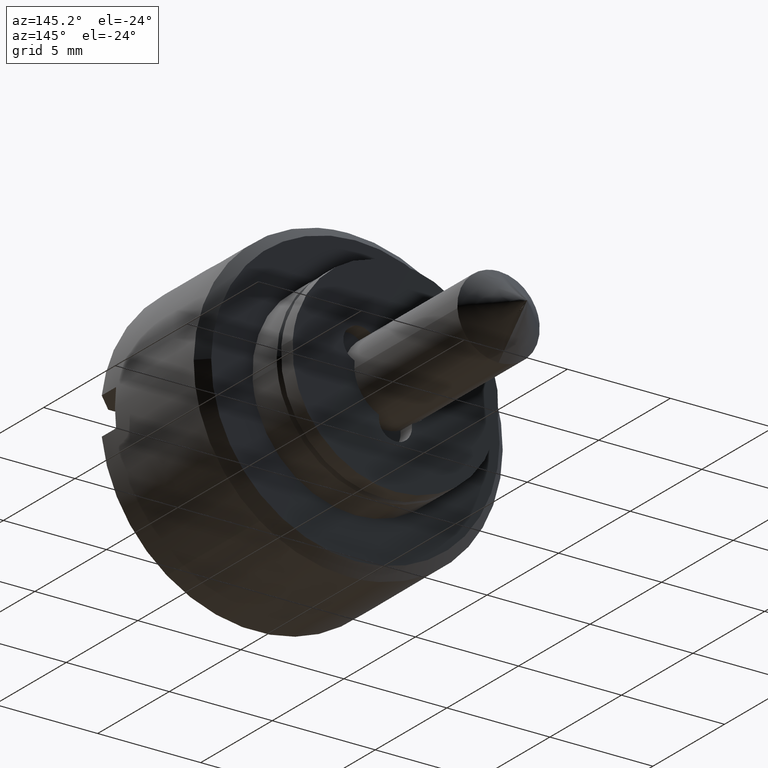
[diagram: clean part render]
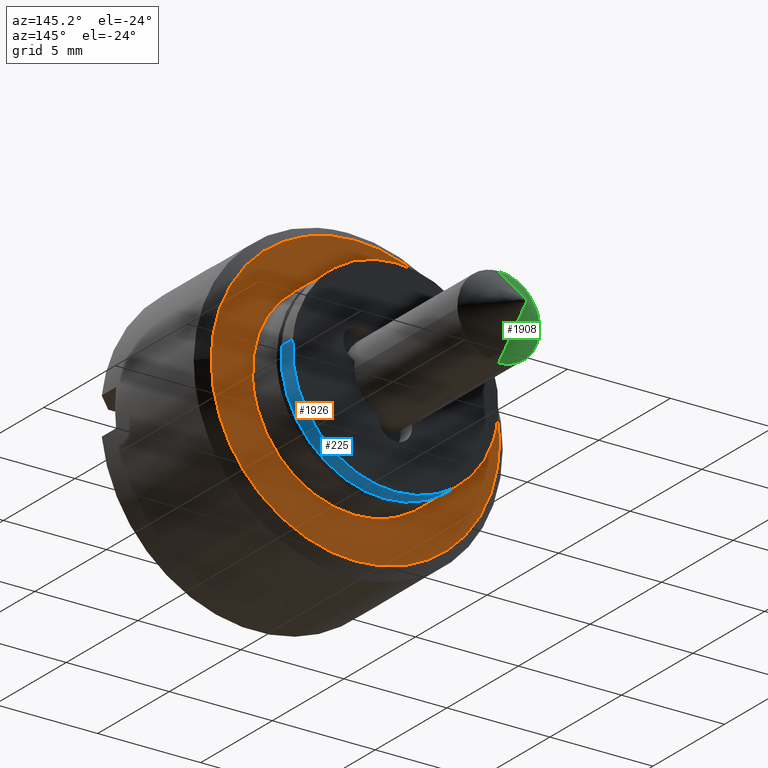
[diagram: same view with three faces highlighted in distinct colors, each labeled with its STEP entity id]
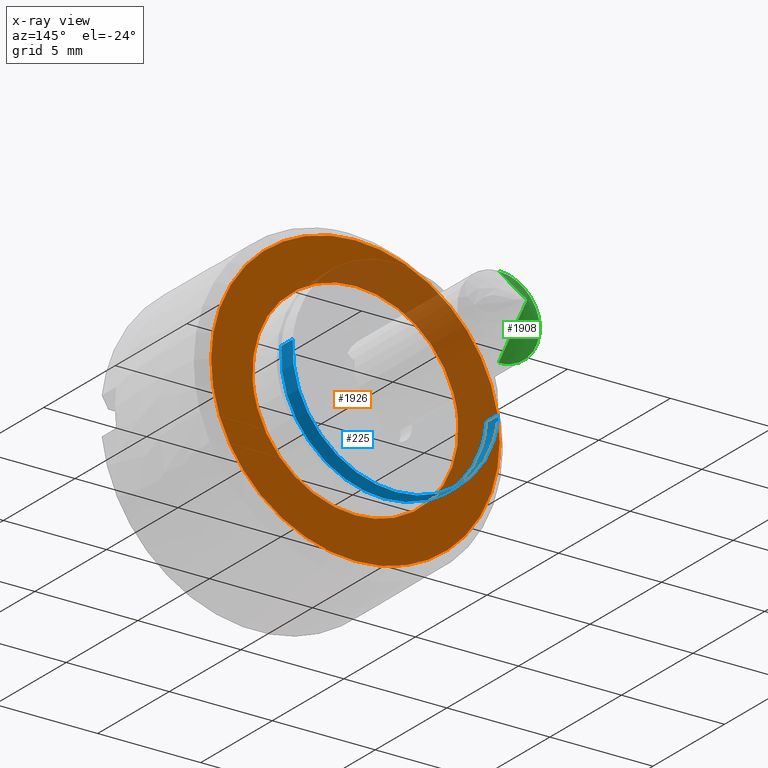
[diagram: x-ray of the same camera — body ghosted, the three highlighted faces saturated]
A machine part, auxiliary view with three faces highlighted in distinct colors.
The next image is the same camera in x-ray (body ghosted, the three faces saturated) — at least one of them is partly hidden behind the body in this view.
Their STEP definitions:

[orange] entity #1926 — the highlighted face is a freeform B-spline surface patch.
#1058=CARTESIAN_POINT('',(-2.000000000003061,-6.999733461452061,0.061085748511123));
#1059=VERTEX_POINT('',#1058);
#1065=CARTESIAN_POINT('',(-2.0,0.0,7.0));
#1066=VERTEX_POINT('',#1065);
#1067=CARTESIAN_POINT('',(-2.0,0.0,7.0));
#1068=CARTESIAN_POINT('',(-2.000000000000000,-6.939178474120266,6.999999999999998));
#1069=CARTESIAN_POINT('',(-2.000000000003061,-6.999733461452061,0.061085748511123));
#1077=(BOUNDED_CURVE()B_SPLINE_CURVE(2,(#1067,#1068,#1069),.UNSPECIFIED.,.F.,.U.)B_SPLINE_CURVE_WITH_KNOTS((3,3),(0.500000000000000,0.748460105663881),.UNSPECIFIED.)CURVE()GEOMETRIC_REPRESENTATION_ITEM()RATIONAL_B_SPLINE_CURVE((1.0,0.708910879621501,0.996414028097787))REPRESENTATION_ITEM(''));
#1078=EDGE_CURVE('',#1066,#1059,#1077,.T.);
#1080=CARTESIAN_POINT('',(-2.000000000003061,6.999733461452062,-0.061085748511124));
#1081=VERTEX_POINT('',#1080);
#1082=CARTESIAN_POINT('',(-2.000000000003061,6.999733461452063,-0.061085748511124));
#1083=CARTESIAN_POINT('',(-2.000000000000000,7.0,-0.030543455767392));
#1084=CARTESIAN_POINT('',(-2.0,7.0,0.0));
#1085=CARTESIAN_POINT('',(-2.0,6.999999999999999,6.999999999999999));
#1086=CARTESIAN_POINT('',(-2.0,0.0,7.0));
#1094=(BOUNDED_CURVE()B_SPLINE_CURVE(2,(#1082,#1083,#1084,#1085,#1086),.UNSPECIFIED.,.F.,.U.)B_SPLINE_CURVE_WITH_KNOTS((3,2,3),(0.248460105663881,0.250000000000000,0.500000000000000),.UNSPECIFIED.)CURVE()GEOMETRIC_REPRESENTATION_ITEM()RATIONAL_B_SPLINE_CURVE((0.996414028097787,0.998195901565047,1.0,0.707106781186547,1.0))REPRESENTATION_ITEM(''));
#1095=EDGE_CURVE('',#1081,#1066,#1094,.T.);
#1201=CARTESIAN_POINT('',(-2.0,0.0,-7.0));
#1202=VERTEX_POINT('',#1201);
#1203=CARTESIAN_POINT('',(-2.0,0.0,-7.0));
#1204=CARTESIAN_POINT('',(-2.000000000000000,6.939178474120274,-7.000000000000001));
#1205=CARTESIAN_POINT('',(-2.000000000003061,6.999733461452063,-0.061085748511124));
#1213=(BOUNDED_CURVE()B_SPLINE_CURVE(2,(#1203,#1204,#1205),.UNSPECIFIED.,.F.,.U.)B_SPLINE_CURVE_WITH_KNOTS((3,3),(0.0,0.248460105663881),.UNSPECIFIED.)CURVE()GEOMETRIC_REPRESENTATION_ITEM()RATIONAL_B_SPLINE_CURVE((1.0,0.708910879621501,0.996414028097787))REPRESENTATION_ITEM(''));
#1214=EDGE_CURVE('',#1202,#1081,#1213,.T.);
#1216=CARTESIAN_POINT('',(-2.000000000003061,-6.999733461452061,0.061085748511124));
#1217=CARTESIAN_POINT('',(-2.000000000000000,-7.0,0.030543455767391));
#1218=CARTESIAN_POINT('',(-2.0,-7.0,0.0));
#1219=CARTESIAN_POINT('',(-2.0,-6.999999999999999,-6.999999999999999));
#1220=CARTESIAN_POINT('',(-2.0,0.0,-7.0));
#1228=(BOUNDED_CURVE()B_SPLINE_CURVE(2,(#1216,#1217,#1218,#1219,#1220),.UNSPECIFIED.,.F.,.U.)B_SPLINE_CURVE_WITH_KNOTS((3,2,3),(0.748460105663882,0.750000000000000,1.0),.UNSPECIFIED.)CURVE()GEOMETRIC_REPRESENTATION_ITEM()RATIONAL_B_SPLINE_CURVE((0.996414028097788,0.998195901565047,1.0,0.707106781186547,1.0))REPRESENTATION_ITEM(''));
#1229=EDGE_CURVE('',#1059,#1202,#1228,.T.);
#1469=CARTESIAN_POINT('',(-2.0,0.0,-5.0));
#1470=VERTEX_POINT('',#1469);
#1471=CARTESIAN_POINT('',(-2.000000000000063,-4.984587027959391,-0.392290913325791));
#1472=VERTEX_POINT('',#1471);
#1473=CARTESIAN_POINT('',(-2.0,0.0,-5.0));
#1474=CARTESIAN_POINT('',(-2.000000000000000,-4.621956704564180,-4.999999999999999));
#1475=CARTESIAN_POINT('',(-2.000000000000063,-4.984587027959392,-0.392290913325791));
#1483=(BOUNDED_CURVE()B_SPLINE_CURVE(2,(#1473,#1474,#1475),.UNSPECIFIED.,.F.,.U.)B_SPLINE_CURVE_WITH_KNOTS((3,3),(0.0,0.236331457638083),.UNSPECIFIED.)CURVE()GEOMETRIC_REPRESENTATION_ITEM()RATIONAL_B_SPLINE_CURVE((1.0,0.723120474662028,0.969723683830163))REPRESENTATION_ITEM(''));
#1484=EDGE_CURVE('',#1470,#1472,#1483,.T.);
#1486=CARTESIAN_POINT('',(-2.000000000000063,4.984587027959391,0.392290913325791));
#1487=VERTEX_POINT('',#1486);
#1488=CARTESIAN_POINT('',(-2.000000000000063,4.984587027959392,0.392290913325791));
#1489=CARTESIAN_POINT('',(-2.0,5.000000000000001,0.196448241788748));
#1490=CARTESIAN_POINT('',(-2.0,5.0,0.0));
#1491=CARTESIAN_POINT('',(-2.000000000000000,5.000000000000001,-5.000000000000001));
#1492=CARTESIAN_POINT('',(-2.0,0.0,-5.0));
#1500=(BOUNDED_CURVE()B_SPLINE_CURVE(2,(#1488,#1489,#1490,#1491,#1492),.UNSPECIFIED.,.F.,.U.)B_SPLINE_CURVE_WITH_KNOTS((3,2,3),(0.736331457638083,0.750000000000000,1.0),.UNSPECIFIED.)CURVE()GEOMETRIC_REPRESENTATION_ITEM()RATIONAL_B_SPLINE_CURVE((0.969723683830163,0.983986306524520,1.0,0.707106781186548,1.0))REPRESENTATION_ITEM(''));
#1501=EDGE_CURVE('',#1487,#1470,#1500,.T.);
#1537=CARTESIAN_POINT('',(-2.0,0.0,5.0));
#1538=VERTEX_POINT('',#1537);
#1539=CARTESIAN_POINT('',(-2.000000000000063,-4.984587027959392,-0.392290913325791));
#1540=CARTESIAN_POINT('',(-2.0,-5.0,-0.196448241788748));
#1541=CARTESIAN_POINT('',(-2.0,-5.0,0.0));
#1542=CARTESIAN_POINT('',(-2.000000000000000,-5.000000000000001,5.000000000000001));
#1543=CARTESIAN_POINT('',(-2.0,0.0,5.0));
#1551=(BOUNDED_CURVE()B_SPLINE_CURVE(2,(#1539,#1540,#1541,#1542,#1543),.UNSPECIFIED.,.F.,.U.)B_SPLINE_CURVE_WITH_KNOTS((3,2,3),(0.236331457638083,0.250000000000000,0.500000000000000),.UNSPECIFIED.)CURVE()GEOMETRIC_REPRESENTATION_ITEM()RATIONAL_B_SPLINE_CURVE((0.969723683830163,0.983986306524520,1.0,0.707106781186548,1.0))REPRESENTATION_ITEM(''));
#1552=EDGE_CURVE('',#1472,#1538,#1551,.T.);
#1559=CARTESIAN_POINT('',(-2.0,0.0,5.0));
#1560=CARTESIAN_POINT('',(-2.0,4.621956704564183,5.000000000000001));
#1561=CARTESIAN_POINT('',(-2.000000000000063,4.984587027959392,0.392290913325791));
#1569=(BOUNDED_CURVE()B_SPLINE_CURVE(2,(#1559,#1560,#1561),.UNSPECIFIED.,.F.,.U.)B_SPLINE_CURVE_WITH_KNOTS((3,3),(0.500000000000000,0.736331457638083),.UNSPECIFIED.)CURVE()GEOMETRIC_REPRESENTATION_ITEM()RATIONAL_B_SPLINE_CURVE((1.0,0.723120474662027,0.969723683830163))REPRESENTATION_ITEM(''));
#1570=EDGE_CURVE('',#1538,#1487,#1569,.T.);
#1909=CARTESIAN_POINT('',(-2.0,-7.699006820701349,-7.699299972865284));
#1910=CARTESIAN_POINT('',(-2.0,7.699006320022335,-7.699299972865284));
#1911=CARTESIAN_POINT('',(-2.0,-7.699006820701349,7.699300348374545));
#1912=CARTESIAN_POINT('',(-2.0,7.699006320022335,7.699300348374545));
#1913=B_SPLINE_SURFACE_WITH_KNOTS('',1,1,((#1909,#1911),(#1910,#1912)),.UNSPECIFIED.,.F.,.F.,.U.,(2,2),(2,2),(0.0,15.398013140723680),(0.0,15.398600321239829),.UNSPECIFIED.);
#1914=ORIENTED_EDGE('',*,*,#1214,.T.);
#1915=ORIENTED_EDGE('',*,*,#1095,.T.);
#1916=ORIENTED_EDGE('',*,*,#1078,.T.);
#1917=ORIENTED_EDGE('',*,*,#1229,.T.);
#1918=EDGE_LOOP('',(#1914,#1915,#1916,#1917));
#1919=FACE_OUTER_BOUND('',#1918,.T.);
#1920=ORIENTED_EDGE('',*,*,#1570,.T.);
#1921=ORIENTED_EDGE('',*,*,#1501,.T.);
#1922=ORIENTED_EDGE('',*,*,#1484,.T.);
#1923=ORIENTED_EDGE('',*,*,#1552,.T.);
#1924=EDGE_LOOP('',(#1920,#1921,#1922,#1923));
#1925=FACE_BOUND('',#1924,.T.);
#1926=ADVANCED_FACE('',(#1919,#1925),#1913,.T.);

[blue] entity #225 — the highlighted face is a freeform B-spline surface patch.
#64=CARTESIAN_POINT('',(-1.330741E-013,-4.984587028064983,0.392290911984086));
#65=VERTEX_POINT('',#64);
#79=CARTESIAN_POINT('',(0.800000000000023,-4.984587023627478,0.392290968369244));
#80=VERTEX_POINT('',#79);
#81=CARTESIAN_POINT('',(0.800000000000023,-4.984587023627478,0.392290968369244));
#82=CARTESIAN_POINT('',(-1.330741E-013,-4.984587028064983,0.392290911984086));
#83=QUASI_UNIFORM_CURVE('',1,(#81,#82),.UNSPECIFIED.,.F.,.U.);
#84=EDGE_CURVE('',#80,#65,#83,.T.);
#101=CARTESIAN_POINT('',(0.800000000000023,4.984587023627478,-0.392290968369244));
#102=VERTEX_POINT('',#101);
#118=CARTESIAN_POINT('',(-1.332615E-013,4.984587028064983,-0.392290911984086));
#119=VERTEX_POINT('',#118);
#120=CARTESIAN_POINT('',(0.800000000000023,4.984587023627478,-0.392290968369244));
#121=CARTESIAN_POINT('',(-1.332615E-013,4.984587028064983,-0.392290911984086));
#122=QUASI_UNIFORM_CURVE('',1,(#120,#121),.UNSPECIFIED.,.F.,.U.);
#123=EDGE_CURVE('',#102,#119,#122,.T.);
#143=CARTESIAN_POINT('',(0.820000000000024,4.984586668665638,-0.392295478639228));
#144=CARTESIAN_POINT('',(0.820000000000024,4.592291190026410,-5.376882147304866));
#145=CARTESIAN_POINT('',(0.820000000000024,-0.392295478639228,-4.984586668665638));
#146=CARTESIAN_POINT('',(0.820000000000024,-5.376882147304866,-4.592291190026410));
#147=CARTESIAN_POINT('',(0.820000000000024,-4.984586668665638,0.392295478639228));
#148=CARTESIAN_POINT('',(-0.020500000000001,4.984586668665638,-0.392295478639228));
#149=CARTESIAN_POINT('',(-0.020500000000001,4.592291190026410,-5.376882147304866));
#150=CARTESIAN_POINT('',(-0.020500000000001,-0.392295478639228,-4.984586668665638));
#151=CARTESIAN_POINT('',(-0.020500000000001,-5.376882147304866,-4.592291190026410));
#152=CARTESIAN_POINT('',(-0.020500000000001,-4.984586668665638,0.392295478639228));
#160=(BOUNDED_SURFACE()B_SPLINE_SURFACE(2,1,((#143,#148),(#144,#149),(#145,#150),(#146,#151),(#147,#152)),.UNSPECIFIED.,.F.,.F.,.U.)B_SPLINE_SURFACE_WITH_KNOTS((3,2,3),(2,2),(0.0,8.284271247461899,16.568542494923800),(0.0,1.0),.UNSPECIFIED.)GEOMETRIC_REPRESENTATION_ITEM()RATIONAL_B_SPLINE_SURFACE(((1.0,1.0),(0.707106781186548,0.707106781186548),(1.0,1.0),(0.707106781186548,0.707106781186548),(1.0,1.0)))REPRESENTATION_ITEM('')SURFACE());
#161=CARTESIAN_POINT('',(0.0,0.0,-5.0));
#162=VERTEX_POINT('',#161);
#163=CARTESIAN_POINT('',(-1.330741E-013,-4.984587028064983,0.392290911984086));
#164=CARTESIAN_POINT('',(0.0,-4.999999999999999,0.196448241114783));
#165=CARTESIAN_POINT('',(0.0,-5.0,0.0));
#166=CARTESIAN_POINT('',(0.0,-5.000000000000001,-5.000000000000001));
#167=CARTESIAN_POINT('',(0.0,0.0,-5.0));
#175=(BOUNDED_CURVE()B_SPLINE_CURVE(2,(#163,#164,#165,#166,#167),.UNSPECIFIED.,.F.,.U.)B_SPLINE_CURVE_WITH_KNOTS((3,2,3),(0.236331457684225,0.250000000000000,0.500000000000000),.UNSPECIFIED.)CURVE()GEOMETRIC_REPRESENTATION_ITEM()RATIONAL_B_SPLINE_CURVE((0.969723683926459,0.983986306578579,1.0,0.707106781186548,1.0))REPRESENTATION_ITEM(''));
#176=EDGE_CURVE('',#65,#162,#175,.T.);
#177=ORIENTED_EDGE('',*,*,#176,.T.);
#178=CARTESIAN_POINT('',(0.0,0.0,-5.0));
#179=CARTESIAN_POINT('',(0.0,4.621956705812123,-5.0));
#180=CARTESIAN_POINT('',(-1.332615E-013,4.984587028064983,-0.392290911984086));
#188=(BOUNDED_CURVE()B_SPLINE_CURVE(2,(#178,#179,#180),.UNSPECIFIED.,.F.,.U.)B_SPLINE_CURVE_WITH_KNOTS((3,3),(0.500000000000000,0.736331457684225),.UNSPECIFIED.)CURVE()GEOMETRIC_REPRESENTATION_ITEM()RATIONAL_B_SPLINE_CURVE((1.0,0.723120474607968,0.969723683926459))REPRESENTATION_ITEM(''));
#189=EDGE_CURVE('',#162,#119,#188,.T.);
#190=ORIENTED_EDGE('',*,*,#189,.T.);
#191=ORIENTED_EDGE('',*,*,#123,.F.);
#192=CARTESIAN_POINT('',(0.800000000000023,0.0,-5.0));
#193=VERTEX_POINT('',#192);
#194=CARTESIAN_POINT('',(0.800000000000023,0.0,-5.0));
#195=CARTESIAN_POINT('',(0.800000000000023,4.621956653367344,-5.000000000000001));
#196=CARTESIAN_POINT('',(0.800000000000023,4.984587023627478,-0.392290968369244));
#204=(BOUNDED_CURVE()B_SPLINE_CURVE(2,(#194,#195,#196),.UNSPECIFIED.,.F.,.U.)B_SPLINE_CURVE_WITH_KNOTS((3,3),(0.500000000000000,0.736331455745088),.UNSPECIFIED.)CURVE()GEOMETRIC_REPRESENTATION_ITEM()RATIONAL_B_SPLINE_CURVE((1.0,0.723120476879809,0.969723679879621))REPRESENTATION_ITEM(''));
#205=EDGE_CURVE('',#193,#102,#204,.T.);
#206=ORIENTED_EDGE('',*,*,#205,.F.);
#207=CARTESIAN_POINT('',(0.800000000000023,-4.984587023627478,0.392290968369244));
#208=CARTESIAN_POINT('',(0.800000000000023,-5.000000000000001,0.196448269438190));
#209=CARTESIAN_POINT('',(0.800000000000023,-5.0,0.0));
#210=CARTESIAN_POINT('',(0.800000000000023,-5.000000000000001,-5.000000000000001));
#211=CARTESIAN_POINT('',(0.800000000000023,0.0,-5.0));
#219=(BOUNDED_CURVE()B_SPLINE_CURVE(2,(#207,#208,#209,#210,#211),.UNSPECIFIED.,.F.,.U.)B_SPLINE_CURVE_WITH_KNOTS((3,2,3),(0.236331455745088,0.250000000000000,0.500000000000000),.UNSPECIFIED.)CURVE()GEOMETRIC_REPRESENTATION_ITEM()RATIONAL_B_SPLINE_CURVE((0.969723679879621,0.983986304306738,1.0,0.707106781186548,1.0))REPRESENTATION_ITEM(''));
#220=EDGE_CURVE('',#80,#193,#219,.T.);
#221=ORIENTED_EDGE('',*,*,#220,.F.);
#222=ORIENTED_EDGE('',*,*,#84,.T.);
#223=EDGE_LOOP('',(#177,#190,#191,#206,#221,#222));
#224=FACE_OUTER_BOUND('',#223,.T.);
#225=ADVANCED_FACE('',(#224),#160,.T.);

[green] entity #1908 — the highlighted face is a freeform B-spline surface patch.
#855=CARTESIAN_POINT('',(7.999999999999984,1.986019444980033,0.236065169286273));
#856=VERTEX_POINT('',#855);
#857=CARTESIAN_POINT('',(8.000000000000009,0.0,-2.000000000000010));
#858=VERTEX_POINT('',#857);
#859=CARTESIAN_POINT('',(7.999999999999984,1.986019444980033,0.236065169286273));
#860=CARTESIAN_POINT('',(8.0,2.0,0.118446571846876));
#861=CARTESIAN_POINT('',(8.0,2.0,0.0));
#862=CARTESIAN_POINT('',(8.0,2.000000000000000,-2.000000000000000));
#863=CARTESIAN_POINT('',(8.0,0.0,-2.0));
#871=(BOUNDED_CURVE()B_SPLINE_CURVE(2,(#859,#860,#861,#862,#863),.UNSPECIFIED.,.F.,.U.)B_SPLINE_CURVE_WITH_KNOTS((3,2,3),(0.459125508672809,0.500000000000000,1.0),.UNSPECIFIED.)CURVE()GEOMETRIC_REPRESENTATION_ITEM()RATIONAL_B_SPLINE_CURVE((0.956027304608807,0.976056277335633,1.0,0.707106781186548,1.0))REPRESENTATION_ITEM(''));
#872=EDGE_CURVE('',#856,#858,#871,.T.);
#958=CARTESIAN_POINT('',(8.000000000000009,0.0,2.000000000000010));
#959=VERTEX_POINT('',#958);
#960=CARTESIAN_POINT('',(8.0,0.0,2.0));
#961=CARTESIAN_POINT('',(8.0,1.776352024316359,2.0));
#962=CARTESIAN_POINT('',(7.999999999999984,1.986019444980033,0.236065169286273));
#970=(BOUNDED_CURVE()B_SPLINE_CURVE(2,(#960,#961,#962),.UNSPECIFIED.,.F.,.U.)B_SPLINE_CURVE_WITH_KNOTS((3,3),(0.0,0.459125508672809),.UNSPECIFIED.)CURVE()GEOMETRIC_REPRESENTATION_ITEM()RATIONAL_B_SPLINE_CURVE((1.0,0.731050503850915,0.956027304608807))REPRESENTATION_ITEM(''));
#971=EDGE_CURVE('',#959,#856,#970,.T.);
#1779=CARTESIAN_POINT('',(10.0,0.0,0.0));
#1780=VERTEX_POINT('',#1779);
#1781=CARTESIAN_POINT('',(10.0,0.0,0.0));
#1782=CARTESIAN_POINT('',(8.000000000000009,0.0,2.000000000000010));
#1783=QUASI_UNIFORM_CURVE('',1,(#1781,#1782),.UNSPECIFIED.,.F.,.U.);
#1784=EDGE_CURVE('',#1780,#959,#1783,.T.);
#1788=CARTESIAN_POINT('',(10.0,0.0,0.0));
#1789=CARTESIAN_POINT('',(8.000000000000009,0.0,-2.000000000000010));
#1790=QUASI_UNIFORM_CURVE('',1,(#1788,#1789),.UNSPECIFIED.,.F.,.U.);
#1791=EDGE_CURVE('',#1780,#858,#1790,.T.);
#1884=CARTESIAN_POINT('',(10.0,0.0,0.0));
#1885=CARTESIAN_POINT('',(7.948750000000000,-0.017900305941038,-2.051171894685439));
#1886=CARTESIAN_POINT('',(10.0,0.0,0.0));
#1887=CARTESIAN_POINT('',(7.948750000000001,2.106150369800970,-2.069708204113510));
#1888=CARTESIAN_POINT('',(10.0,0.0,0.0));
#1889=CARTESIAN_POINT('',(7.948750000000000,2.050547087856169,0.053695465216527));
#1890=CARTESIAN_POINT('',(10.0,0.0,0.0));
#1891=CARTESIAN_POINT('',(7.948750000000001,1.994943805911369,2.177099134546564));
#1892=CARTESIAN_POINT('',(10.0,0.0,0.0));
#1893=CARTESIAN_POINT('',(7.948750000000000,-0.125225816720878,2.047424005262912));
#1901=(BOUNDED_SURFACE()B_SPLINE_SURFACE(1,2,((#1884,#1886,#1888,#1890,#1892),(#1885,#1887,#1889,#1891,#1893)),.UNSPECIFIED.,.F.,.F.,.U.)B_SPLINE_SURFACE_WITH_KNOTS((2,2),(3,2,3),(0.0,1.0),(0.0,1.0,2.0),.UNSPECIFIED.)GEOMETRIC_REPRESENTATION_ITEM()RATIONAL_B_SPLINE_SURFACE(((1.0,0.694658370458997,1.0,0.694658370458997,1.0),(1.0,0.694658370458997,1.0,0.694658370458997,1.0)))REPRESENTATION_ITEM('')SURFACE());
#1902=ORIENTED_EDGE('',*,*,#1791,.T.);
#1903=ORIENTED_EDGE('',*,*,#872,.F.);
#1904=ORIENTED_EDGE('',*,*,#971,.F.);
#1905=ORIENTED_EDGE('',*,*,#1784,.F.);
#1906=EDGE_LOOP('',(#1902,#1903,#1904,#1905));
#1907=FACE_OUTER_BOUND('',#1906,.T.);
#1908=ADVANCED_FACE('',(#1907),#1901,.T.);